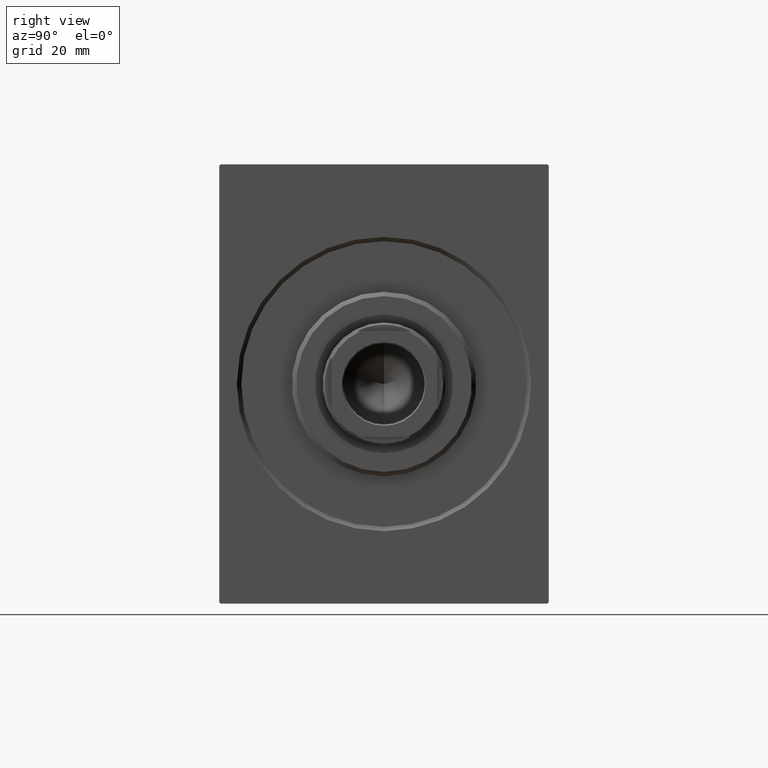
[diagram: clean part render]
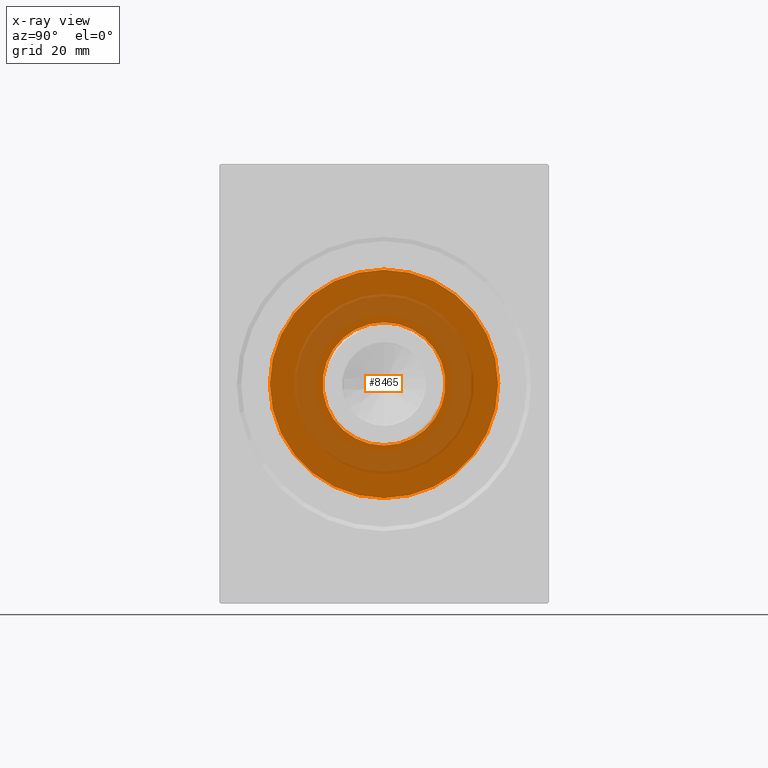
[diagram: x-ray — body ghosted, one internal face saturated and labeled with its STEP entity id]
A machine part, right view, then the same camera in x-ray: the body is ghosted and one INTERNAL B-rep face — a face not visible from any outside direction — is saturated and labeled: STEP entity #8465.
In plain terms, the highlighted planar face has unit normal (-1, 0, 0).
Its self-contained STEP definition (entity closure, byte-faithful):
#396 = CIRCLE ( 'NONE', #6586, 14.00000000000000178 ) ;
#2387 = EDGE_CURVE ( 'NONE', #41617, #14589, #32818, .T. ) ;
#4182 = DIRECTION ( 'NONE',  ( 0.000000000000000000, 0.000000000000000000, 1.000000000000000000 ) ) ;
#4189 = DIRECTION ( 'NONE',  ( 1.000000000000000000, 0.000000000000000000, 0.000000000000000000 ) ) ;
#6032 = AXIS2_PLACEMENT_3D ( 'NONE', #29476, #35516, #29252 ) ;
#6586 = AXIS2_PLACEMENT_3D ( 'NONE', #22996, #16973, #7264 ) ;
#7264 = DIRECTION ( 'NONE',  ( 0.000000000000000000, 0.000000000000000000, -1.000000000000000000 ) ) ;
#7695 = CARTESIAN_POINT ( 'NONE',  ( -16.60000000000000142, 1.714505518806294441E-15, 14.00000000000000178 ) ) ;
#8465 = ADVANCED_FACE ( 'NONE', ( #29045, #42170 ), #38529, .T. ) ;
#9727 = DIRECTION ( 'NONE',  ( 0.000000000000000000, 0.000000000000000000, 1.000000000000000000 ) ) ;
#9942 = DIRECTION ( 'NONE',  ( -1.000000000000000000, 0.000000000000000000, 0.000000000000000000 ) ) ;
#10115 = AXIS2_PLACEMENT_3D ( 'NONE', #27876, #4189, #13886 ) ;
#13649 = ORIENTED_EDGE ( 'NONE', *, *, #15945, .T. ) ;
#13886 = DIRECTION ( 'NONE',  ( 0.000000000000000000, 0.000000000000000000, -1.000000000000000000 ) ) ;
#14033 = AXIS2_PLACEMENT_3D ( 'NONE', #17334, #20566, #4182 ) ;
#14589 = VERTEX_POINT ( 'NONE', #7695 ) ;
#15945 = EDGE_CURVE ( 'NONE', #38688, #32394, #40031, .T. ) ;
#16095 = CIRCLE ( 'NONE', #14033, 26.00000000000000355 ) ;
#16973 = DIRECTION ( 'NONE',  ( 1.000000000000000000, 0.000000000000000000, 0.000000000000000000 ) ) ;
#17334 = CARTESIAN_POINT ( 'NONE',  ( -16.60000000000000142, 0.000000000000000000, 0.000000000000000000 ) ) ;
#18385 = EDGE_LOOP ( 'NONE', ( #24157, #21168 ) ) ;
#19568 = EDGE_LOOP ( 'NONE', ( #13649, #32316 ) ) ;
#20566 = DIRECTION ( 'NONE',  ( -1.000000000000000000, 0.000000000000000000, 0.000000000000000000 ) ) ;
#20808 = AXIS2_PLACEMENT_3D ( 'NONE', #32357, #9942, #9727 ) ;
#21168 = ORIENTED_EDGE ( 'NONE', *, *, #36530, .T. ) ;
#22354 = CARTESIAN_POINT ( 'NONE',  ( -16.60000000000000142, 3.184081677783117796E-15, 26.00000000000000355 ) ) ;
#22996 = CARTESIAN_POINT ( 'NONE',  ( -16.60000000000000142, 0.000000000000000000, 0.000000000000000000 ) ) ;
#24157 = ORIENTED_EDGE ( 'NONE', *, *, #2387, .T. ) ;
#27876 = CARTESIAN_POINT ( 'NONE',  ( -16.60000000000000142, 0.000000000000000000, 0.000000000000000000 ) ) ;
#29045 = FACE_BOUND ( 'NONE', #18385, .T. ) ;
#29252 = DIRECTION ( 'NONE',  ( 0.000000000000000000, 0.000000000000000000, 1.000000000000000000 ) ) ;
#29476 = CARTESIAN_POINT ( 'NONE',  ( -16.60000000000000142, 0.000000000000000000, 0.000000000000000000 ) ) ;
#31753 = EDGE_CURVE ( 'NONE', #32394, #38688, #16095, .T. ) ;
#32188 = CARTESIAN_POINT ( 'NONE',  ( -16.60000000000000142, 0.000000000000000000, -14.00000000000000178 ) ) ;
#32316 = ORIENTED_EDGE ( 'NONE', *, *, #31753, .T. ) ;
#32357 = CARTESIAN_POINT ( 'NONE',  ( -16.60000000000000142, 0.000000000000000000, 0.000000000000000000 ) ) ;
#32394 = VERTEX_POINT ( 'NONE', #22354 ) ;
#32818 = CIRCLE ( 'NONE', #10115, 14.00000000000000178 ) ;
#35516 = DIRECTION ( 'NONE',  ( -1.000000000000000000, 0.000000000000000000, 0.000000000000000000 ) ) ;
#36530 = EDGE_CURVE ( 'NONE', #14589, #41617, #396, .T. ) ;
#38529 = PLANE ( 'NONE',  #6032 ) ;
#38688 = VERTEX_POINT ( 'NONE', #39330 ) ;
#39330 = CARTESIAN_POINT ( 'NONE',  ( -16.60000000000000142, 0.000000000000000000, -26.00000000000000355 ) ) ;
#40031 = CIRCLE ( 'NONE', #20808, 26.00000000000000355 ) ;
#41617 = VERTEX_POINT ( 'NONE', #32188 ) ;
#42170 = FACE_OUTER_BOUND ( 'NONE', #19568, .T. ) ;